MODEL slx_ba50df98c3de
KIND model
CONFIG InitFcn = clear functions
CONFIG PostLoadFcn = init_motes
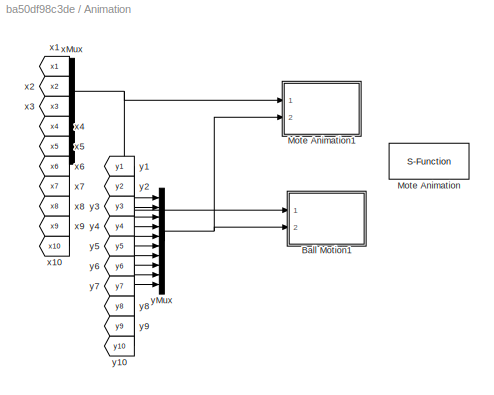
BLOCK [SubSystem] Animation
  FunctionWithSeparateData = off
  MaskEnableString = on
  MaskHideContents = off
  MaskIconFrame = on
  MaskIconOpaque = on
  MaskIconRotate = none
  MaskIconUnits = autoscale
  MaskInitialization = soccer_callback(gcb,N)
  MaskPortRotate = default
  MaskPromptString = Number of nodes
  MaskStyleString = edit
  MaskToolTipString = on
  MaskTunableValueString = on
  MaskValueString = 10
  MaskVariables = N=@1;
  MaskVisibilityString = on
  MinAlgLoopOccurrences = off
  Opaque = off
  Ports = []
  PropExecContextOutsideSubsystem = off
  RTWSystemCode = Auto
  RequestExecContextInheritance = off
BLOCK [SubSystem] Animation/Ball Motion1
  FunctionWithSeparateData = off
  MaskEnableString = on
  MaskHideContents = off
  MaskIconFrame = on
  MaskIconOpaque = on
  MaskIconRotate = none
  MaskIconUnits = autoscale
  MaskPortRotate = default
  MaskPromptString = Number of Motes
  MaskStyleString = edit
  MaskToolTipString = on
  MaskTunableValueString = on
  MaskValueString = 10
  MaskVariables = numMotes=@1;
  MaskVisibilityString = on
  MinAlgLoopOccurrences = off
  Opaque = off
  Ports = [2]
  PropExecContextOutsideSubsystem = off
  RTWSystemCode = Auto
  RequestExecContextInheritance = off
BLOCK [S-Function] Animation/Ball Motion1/Mote Animation
  DeleteFcn = if ~isempty(findobj('type','figure','name','dblpend1 Animation'));close('dblpend1 Animation'); end;
  EnableBusSupport = off
  FunctionName = ballmotion
  Parameters = [numMotes,xBall,yBall]
  Ports = [1]
BLOCK [Mux] Animation/Ball Motion1/Mux
  DisplayOption = bar
  Inputs = 2
  Ports = [2, 1]
BLOCK [Inport] Animation/Ball Motion1/x
  IconDisplay = Port number
BLOCK [Inport] Animation/Ball Motion1/y
  IconDisplay = Port number
  Port = 2
BLOCK [S-Function] Animation/Mote Animation
  DeleteFcn = if ~isempty(findobj('type','figure','name','dblpend1 Animation'));close('dblpend1 Animation'); end;
  EnableBusSupport = off
  FunctionName = mote_state
  Ports = []
BLOCK [SubSystem] Animation/Mote Animation1
  FunctionWithSeparateData = off
  MaskCallbackString = |||||
  MaskEnableString = on,on,on,on,on,on
  MaskHideContents = off
  MaskIconFrame = on
  MaskIconOpaque = on
  MaskIconRotate = none
  MaskIconUnits = autoscale
  MaskPortRotate = default
  MaskPromptString = Number of Motes|xMax|YMax|Update period|x0|y0
  MaskStyleString = edit,edit,edit,edit,edit,edit
  MaskToolTipString = on,on,on,on,on,on
  MaskTunableValueString = on,on,on,on,on,on
  MaskValueString = 10|20|30|0.1|xPos|yPos
  MaskVariables = numMotes=@1;xmax=@2;ymax=@3;ts=@4;x0=@5;y0=@6;
  MaskVisibilityString = on,on,on,on,on,on
  MinAlgLoopOccurrences = off
  Opaque = off
  Ports = [2]
  PropExecContextOutsideSubsystem = off
  RTWSystemCode = Auto
  RequestExecContextInheritance = off
BLOCK [S-Function] Animation/Mote Animation1/Mote Animation
  DeleteFcn = if ~isempty(findobj('type','figure','name','dblpend1 Animation'));close('dblpend1 Animation'); end;
  EnableBusSupport = off
  FunctionName = moteanimation
  Parameters = [numMotes ts xmax ymax] x0 y0
  Ports = [1]
BLOCK [Mux] Animation/Mote Animation1/Mux
  DisplayOption = bar
  Inputs = 2
  Ports = [2, 1]
BLOCK [Inport] Animation/Mote Animation1/x
  IconDisplay = Port number
BLOCK [Inport] Animation/Mote Animation1/y
  IconDisplay = Port number
  Port = 2
BLOCK [From] Animation/x1
  GotoTag = x1
  TagVisibility = global
BLOCK [From] Animation/x10
  GotoTag = x10
  TagVisibility = global
BLOCK [From] Animation/x2
  GotoTag = x2
  TagVisibility = global
BLOCK [From] Animation/x3
  GotoTag = x3
  TagVisibility = global
BLOCK [From] Animation/x4
  GotoTag = x4
  TagVisibility = global
BLOCK [From] Animation/x5
  GotoTag = x5
  TagVisibility = global
BLOCK [From] Animation/x6
  GotoTag = x6
  TagVisibility = global
BLOCK [From] Animation/x7
  GotoTag = x7
  TagVisibility = global
BLOCK [From] Animation/x8
  GotoTag = x8
  TagVisibility = global
BLOCK [From] Animation/x9
  GotoTag = x9
  TagVisibility = global
BLOCK [Mux] Animation/xMux
  DisplayOption = bar
  Inputs = 10
  Ports = [10, 1]
BLOCK [From] Animation/y1
  GotoTag = y1
  TagVisibility = global
BLOCK [From] Animation/y10
  GotoTag = y10
  TagVisibility = global
BLOCK [From] Animation/y2
  GotoTag = y2
  TagVisibility = global
BLOCK [From] Animation/y3
  GotoTag = y3
  TagVisibility = global
BLOCK [From] Animation/y4
  GotoTag = y4
  TagVisibility = global
BLOCK [From] Animation/y5
  GotoTag = y5
  TagVisibility = global
BLOCK [From] Animation/y6
  GotoTag = y6
  TagVisibility = global
BLOCK [From] Animation/y7
  GotoTag = y7
  TagVisibility = global
BLOCK [From] Animation/y8
  GotoTag = y8
  TagVisibility = global
BLOCK [From] Animation/y9
  GotoTag = y9
  TagVisibility = global
BLOCK [Mux] Animation/yMux
  DisplayOption = bar
  Inputs = 10
  Ports = [10, 1]
BLOCK [Clock] Clock
BLOCK [Display] Display
  Decimation = 1
  Lockdown = off
  Ports = [1]
BLOCK [SubSystem] Mote 1
  FunctionWithSeparateData = off
  MaskEnableString = on
  MaskHideContents = off
  MaskIconFrame = on
  MaskIconOpaque = on
  MaskIconRotate = none
  MaskIconUnits = autoscale
  MaskInitialization = mote_callback(gcb,nodeID)
  MaskPortRotate = default
  MaskPromptString = Node number
  MaskStyleString = edit
  MaskToolTipString = on
  MaskTunableValueString = off
  MaskType = fgdfgMOTE
  MaskValueString = 1
  MaskVariables = nodeID=@1;
  MaskVisibilityString = on
  MinAlgLoopOccurrences = off
  Opaque = off
  Ports = []
  PropExecContextOutsideSubsystem = off
  RTWSystemCode = Auto
  RequestExecContextInheritance = off
BLOCK [Integrator] Mote 1/ 
  InitialCondition = xPos(nodeID)
  Ports = [1, 1]
BLOCK [Demux] Mote 1/Demux
  Outputs = 2
  Ports = [1, 2]
BLOCK [Goto] Mote 1/Goto_x
  GotoTag = x1
  TagVisibility = global
BLOCK [Goto] Mote 1/Goto_y
  GotoTag = y1
  TagVisibility = global
BLOCK [Mux] Mote 1/Mux
  DisplayOption = bar
  Inputs = 2
  Ports = [2, 1]
BLOCK [Scope] Mote 1/Schedule
  Floating = off
  LimitDataPoints = off
  NumInputPorts = 1
  Ports = [1]
  ShowLegends = off
  TickLabels = on
  TimeRange = 3.5
  YMax = 3.7
  YMin = 1.8
  ZoomMode = xonly
BLOCK [Reference] Mote 1/TrueTime Kernel  REF=truetime/TrueTime Kernel  (lib defined in slx_0362a698a4ec)
  Ports = [1, 2]
  SourceBlock = truetime/TrueTime Kernel
  args = nodeID
  battery = off
  clockoffsetdrift = [0 0]
  label = 1: 1
  ninputsoutputs = [2 2]
  ntriggers = 0
  nwnodenbr = nodeID
  poweroutput = off
  schedoutput = on
  sfun = node_red_goalie_init
  trigtype = falling
BLOCK [SubSystem] Mote 10
  FunctionWithSeparateData = off
  MaskEnableString = on
  MaskHideContents = off
  MaskIconFrame = on
  MaskIconOpaque = on
  MaskIconRotate = none
  MaskIconUnits = autoscale
  MaskInitialization = mote_callback(gcb,nodeID)
  MaskPortRotate = default
  MaskPromptString = Node number
  MaskStyleString = edit
  MaskToolTipString = on
  MaskTunableValueString = off
  MaskType = fgdfgMOTE
  MaskValueString = 10
  MaskVariables = nodeID=@1;
  MaskVisibilityString = on
  MinAlgLoopOccurrences = off
  Opaque = off
  Ports = []
  PropExecContextOutsideSubsystem = off
  RTWSystemCode = Auto
  RequestExecContextInheritance = off
BLOCK [Integrator] Mote 10/ 
  InitialCondition = xPos(nodeID)
  Ports = [1, 1]
BLOCK [Demux] Mote 10/Demux
  Outputs = 2
  Ports = [1, 2]
BLOCK [Goto] Mote 10/Goto_x
  GotoTag = x10
  TagVisibility = global
BLOCK [Goto] Mote 10/Goto_y
  GotoTag = y10
  TagVisibility = global
BLOCK [Mux] Mote 10/Mux
  DisplayOption = bar
  Ports = [4, 1]
BLOCK [Scope] Mote 10/Schedule
  Floating = off
  LimitDataPoints = off
  NumInputPorts = 1
  Ports = [1]
  SaveName = ScopeData2
  ShowLegends = off
  TickLabels = on
  TimeRange = 3.5
  YMax = 3.7
  YMin = 1.8
  ZoomMode = xonly
BLOCK [TransferFcn] Mote 10/Transfer Fcn
  Denominator = [1 3.5]
BLOCK [TransferFcn] Mote 10/Transfer Fcn1
  Denominator = [1 3.5]
BLOCK [Reference] Mote 10/TrueTime Kernel  REF=truetime/TrueTime Kernel  (lib defined in slx_0362a698a4ec)
  Ports = [1, 2]
  SourceBlock = truetime/TrueTime Kernel
  args = nodeID
  battery = off
  clockoffsetdrift = [0 0]
  label = 1: 10
  ninputsoutputs = [4 2]
  ntriggers = 0
  nwnodenbr = nodeID
  poweroutput = off
  schedoutput = on
  sfun = node_blue_init
  trigtype = falling
BLOCK [SubSystem] Mote 2
  FunctionWithSeparateData = off
  MaskEnableString = on
  MaskHideContents = off
  MaskIconFrame = on
  MaskIconOpaque = on
  MaskIconRotate = none
  MaskIconUnits = autoscale
  MaskInitialization = mote_callback(gcb,nodeID)
  MaskPortRotate = default
  MaskPromptString = Node number
  MaskStyleString = edit
  MaskToolTipString = on
  MaskTunableValueString = off
  MaskType = fgdfgMOTE
  MaskValueString = 2
  MaskVariables = nodeID=@1;
  MaskVisibilityString = on
  MinAlgLoopOccurrences = off
  Opaque = off
  Ports = []
  PropExecContextOutsideSubsystem = off
  RTWSystemCode = Auto
  RequestExecContextInheritance = off
BLOCK [Integrator] Mote 2/ 
  InitialCondition = xPos(nodeID)
  Ports = [1, 1]
BLOCK [Demux] Mote 2/Demux
  Outputs = 2
  Ports = [1, 2]
BLOCK [Goto] Mote 2/Goto_x
  GotoTag = x2
  TagVisibility = global
BLOCK [Goto] Mote 2/Goto_y
  GotoTag = y2
  TagVisibility = global
BLOCK [Mux] Mote 2/Mux
  DisplayOption = bar
  Ports = [4, 1]
BLOCK [Scope] Mote 2/Schedule
  Floating = off
  LimitDataPoints = off
  NumInputPorts = 1
  Ports = [1]
  ShowLegends = off
  TickLabels = on
  TimeRange = 3.5
  YMax = 3.7
  YMin = 1.8
  ZoomMode = xonly
BLOCK [TransferFcn] Mote 2/Transfer Fcn
  Denominator = [1 3.5]
BLOCK [TransferFcn] Mote 2/Transfer Fcn1
  Denominator = [1 3.5]
BLOCK [Reference] Mote 2/TrueTime Kernel  REF=truetime/TrueTime Kernel  (lib defined in slx_0362a698a4ec)
  Ports = [1, 2]
  SourceBlock = truetime/TrueTime Kernel
  args = nodeID
  battery = off
  clockoffsetdrift = [0 0]
  label = 1: 2
  ninputsoutputs = [4 2]
  ntriggers = 0
  nwnodenbr = nodeID
  poweroutput = off
  schedoutput = on
  sfun = node_red_init
  trigtype = falling
BLOCK [SubSystem] Mote 3
  FunctionWithSeparateData = off
  MaskEnableString = on
  MaskHideContents = off
  MaskIconFrame = on
  MaskIconOpaque = on
  MaskIconRotate = none
  MaskIconUnits = autoscale
  MaskInitialization = mote_callback(gcb,nodeID)
  MaskPortRotate = default
  MaskPromptString = Node number
  MaskStyleString = edit
  MaskToolTipString = on
  MaskTunableValueString = off
  MaskType = fgdfgMOTE
  MaskValueString = 3
  MaskVariables = nodeID=@1;
  MaskVisibilityString = on
  MinAlgLoopOccurrences = off
  Opaque = off
  Ports = []
  PropExecContextOutsideSubsystem = off
  RTWSystemCode = Auto
  RequestExecContextInheritance = off
BLOCK [Integrator] Mote 3/ 
  InitialCondition = xPos(nodeID)
  Ports = [1, 1]
BLOCK [Demux] Mote 3/Demux
  Outputs = 2
  Ports = [1, 2]
BLOCK [Goto] Mote 3/Goto_x
  GotoTag = x3
  TagVisibility = global
BLOCK [Goto] Mote 3/Goto_y
  GotoTag = y3
  TagVisibility = global
BLOCK [Mux] Mote 3/Mux
  DisplayOption = bar
  Ports = [4, 1]
BLOCK [Scope] Mote 3/Schedule
  Floating = off
  LimitDataPoints = off
  NumInputPorts = 1
  Ports = [1]
  ShowLegends = off
  TickLabels = on
  TimeRange = 3.5
  YMax = 3.7
  YMin = 1.8
  ZoomMode = xonly
BLOCK [TransferFcn] Mote 3/Transfer Fcn
  Denominator = [1 4]
BLOCK [TransferFcn] Mote 3/Transfer Fcn1
  Denominator = [1 4]
BLOCK [Reference] Mote 3/TrueTime Kernel  REF=truetime/TrueTime Kernel  (lib defined in slx_0362a698a4ec)
  Ports = [1, 2]
  SourceBlock = truetime/TrueTime Kernel
  args = nodeID
  battery = off
  clockoffsetdrift = [0 0]
  label = 1: 3
  ninputsoutputs = [4 2]
  ntriggers = 0
  nwnodenbr = nodeID
  poweroutput = off
  schedoutput = on
  sfun = node_red_init
  trigtype = falling
BLOCK [SubSystem] Mote 4
  FunctionWithSeparateData = off
  MaskEnableString = on
  MaskHideContents = off
  MaskIconFrame = on
  MaskIconOpaque = on
  MaskIconRotate = none
  MaskIconUnits = autoscale
  MaskInitialization = mote_callback(gcb,nodeID)
  MaskPortRotate = default
  MaskPromptString = Node number
  MaskStyleString = edit
  MaskToolTipString = on
  MaskTunableValueString = off
  MaskType = fgdfgMOTE
  MaskValueString = 4
  MaskVariables = nodeID=@1;
  MaskVisibilityString = on
  MinAlgLoopOccurrences = off
  Opaque = off
  Ports = []
  PropExecContextOutsideSubsystem = off
  RTWSystemCode = Auto
  RequestExecContextInheritance = off
BLOCK [Integrator] Mote 4/ 
  InitialCondition = xPos(nodeID)
  Ports = [1, 1]
BLOCK [Demux] Mote 4/Demux
  Outputs = 2
  Ports = [1, 2]
BLOCK [Goto] Mote 4/Goto_x
  GotoTag = x4
  TagVisibility = global
BLOCK [Goto] Mote 4/Goto_y
  GotoTag = y4
  TagVisibility = global
BLOCK [Mux] Mote 4/Mux
  DisplayOption = bar
  Ports = [4, 1]
BLOCK [Scope] Mote 4/Schedule
  Floating = off
  LimitDataPoints = off
  NumInputPorts = 1
  Ports = [1]
  ShowLegends = off
  TickLabels = on
  TimeRange = 3.5
  YMax = 3.7
  YMin = 1.8
  ZoomMode = xonly
BLOCK [TransferFcn] Mote 4/Transfer Fcn
  Denominator = [1 2.5]
BLOCK [TransferFcn] Mote 4/Transfer Fcn1
  Denominator = [1 2.5]
BLOCK [Reference] Mote 4/TrueTime Kernel  REF=truetime/TrueTime Kernel  (lib defined in slx_0362a698a4ec)
  Ports = [1, 2]
  SourceBlock = truetime/TrueTime Kernel
  args = nodeID
  battery = off
  clockoffsetdrift = [0 0]
  label = 1: 4
  ninputsoutputs = [4 2]
  ntriggers = 0
  nwnodenbr = nodeID
  poweroutput = off
  schedoutput = on
  sfun = node_red_init
  trigtype = falling
BLOCK [SubSystem] Mote 5
  FunctionWithSeparateData = off
  MaskEnableString = on
  MaskHideContents = off
  MaskIconFrame = on
  MaskIconOpaque = on
  MaskIconRotate = none
  MaskIconUnits = autoscale
  MaskInitialization = mote_callback(gcb,nodeID)
  MaskPortRotate = default
  MaskPromptString = Node number
  MaskStyleString = edit
  MaskToolTipString = on
  MaskTunableValueString = off
  MaskType = fgdfgMOTE
  MaskValueString = 5
  MaskVariables = nodeID=@1;
  MaskVisibilityString = on
  MinAlgLoopOccurrences = off
  Opaque = off
  Ports = []
  PropExecContextOutsideSubsystem = off
  RTWSystemCode = Auto
  RequestExecContextInheritance = off
BLOCK [Integrator] Mote 5/ 
  InitialCondition = xPos(nodeID)
  Ports = [1, 1]
BLOCK [Demux] Mote 5/Demux
  Outputs = 2
  Ports = [1, 2]
BLOCK [Goto] Mote 5/Goto_x
  GotoTag = x5
  TagVisibility = global
BLOCK [Goto] Mote 5/Goto_y
  GotoTag = y5
  TagVisibility = global
BLOCK [Mux] Mote 5/Mux
  DisplayOption = bar
  Ports = [4, 1]
BLOCK [Scope] Mote 5/Schedule
  Floating = off
  LimitDataPoints = off
  NumInputPorts = 1
  Ports = [1]
  ShowLegends = off
  TickLabels = on
  TimeRange = 3.5
  YMax = 3.7
  YMin = 1.8
  ZoomMode = xonly
BLOCK [TransferFcn] Mote 5/Transfer Fcn
  Denominator = [1 2.5]
BLOCK [TransferFcn] Mote 5/Transfer Fcn1
  Denominator = [1 2.5]
BLOCK [Reference] Mote 5/TrueTime Kernel  REF=truetime/TrueTime Kernel  (lib defined in slx_0362a698a4ec)
  Ports = [1, 2]
  SourceBlock = truetime/TrueTime Kernel
  args = nodeID
  battery = off
  clockoffsetdrift = [0 0]
  label = 1: 5
  ninputsoutputs = [4 2]
  ntriggers = 0
  nwnodenbr = nodeID
  poweroutput = off
  schedoutput = on
  sfun = node_red_init
  trigtype = falling
BLOCK [SubSystem] Mote 6
  FunctionWithSeparateData = off
  MaskEnableString = on
  MaskHideContents = off
  MaskIconFrame = on
  MaskIconOpaque = on
  MaskIconRotate = none
  MaskIconUnits = autoscale
  MaskInitialization = mote_callback(gcb,nodeID)
  MaskPortRotate = default
  MaskPromptString = Node number
  MaskStyleString = edit
  MaskToolTipString = on
  MaskTunableValueString = off
  MaskType = fgdfgMOTE
  MaskValueString = 6
  MaskVariables = nodeID=@1;
  MaskVisibilityString = on
  MinAlgLoopOccurrences = off
  Opaque = off
  Ports = []
  PropExecContextOutsideSubsystem = off
  RTWSystemCode = Auto
  RequestExecContextInheritance = off
BLOCK [Integrator] Mote 6/ 
  InitialCondition = xPos(nodeID)
  Ports = [1, 1]
BLOCK [Demux] Mote 6/Demux
  Outputs = 2
  Ports = [1, 2]
BLOCK [Goto] Mote 6/Goto_x
  GotoTag = x6
  TagVisibility = global
BLOCK [Goto] Mote 6/Goto_y
  GotoTag = y6
  TagVisibility = global
BLOCK [Mux] Mote 6/Mux
  DisplayOption = bar
  Inputs = 2
  Ports = [2, 1]
BLOCK [Scope] Mote 6/Schedule
  Floating = off
  LimitDataPoints = off
  NumInputPorts = 1
  Ports = [1]
  SaveName = ScopeData1
  ShowLegends = off
  TickLabels = on
  TimeRange = 3.5
  YMax = 3.7
  YMin = 1.8
  ZoomMode = xonly
BLOCK [Reference] Mote 6/TrueTime Kernel  REF=truetime/TrueTime Kernel  (lib defined in slx_0362a698a4ec)
  Ports = [1, 2]
  SourceBlock = truetime/TrueTime Kernel
  args = nodeID
  battery = off
  clockoffsetdrift = [0 0]
  label = 1: 6
  ninputsoutputs = [2 2]
  ntriggers = 0
  nwnodenbr = nodeID
  poweroutput = off
  schedoutput = on
  sfun = node_blue_goalie_init
  trigtype = falling
BLOCK [SubSystem] Mote 7
  FunctionWithSeparateData = off
  MaskEnableString = on
  MaskHideContents = off
  MaskIconFrame = on
  MaskIconOpaque = on
  MaskIconRotate = none
  MaskIconUnits = autoscale
  MaskInitialization = mote_callback(gcb,nodeID)
  MaskPortRotate = default
  MaskPromptString = Node number
  MaskStyleString = edit
  MaskToolTipString = on
  MaskTunableValueString = off
  MaskType = fgdfgMOTE
  MaskValueString = 7
  MaskVariables = nodeID=@1;
  MaskVisibilityString = on
  MinAlgLoopOccurrences = off
  Opaque = off
  Ports = []
  PropExecContextOutsideSubsystem = off
  RTWSystemCode = Auto
  RequestExecContextInheritance = off
BLOCK [Integrator] Mote 7/ 
  InitialCondition = xPos(nodeID)
  Ports = [1, 1]
BLOCK [Demux] Mote 7/Demux
  Outputs = 2
  Ports = [1, 2]
BLOCK [Goto] Mote 7/Goto_x
  GotoTag = x7
  TagVisibility = global
BLOCK [Goto] Mote 7/Goto_y
  GotoTag = y7
  TagVisibility = global
BLOCK [Mux] Mote 7/Mux
  DisplayOption = bar
  Ports = [4, 1]
BLOCK [Scope] Mote 7/Schedule
  Floating = off
  LimitDataPoints = off
  NumInputPorts = 1
  Ports = [1]
  SaveName = ScopeData2
  ShowLegends = off
  TickLabels = on
  TimeRange = 3.5
  YMax = 3.7
  YMin = 1.8
  ZoomMode = xonly
BLOCK [TransferFcn] Mote 7/Transfer Fcn
  Denominator = [1 2.5]
BLOCK [TransferFcn] Mote 7/Transfer Fcn1
  Denominator = [1 2.5]
BLOCK [Reference] Mote 7/TrueTime Kernel  REF=truetime/TrueTime Kernel  (lib defined in slx_0362a698a4ec)
  Ports = [1, 2]
  SourceBlock = truetime/TrueTime Kernel
  args = nodeID
  battery = off
  clockoffsetdrift = [0 0]
  label = 1: 7
  ninputsoutputs = [4 2]
  ntriggers = 0
  nwnodenbr = nodeID
  poweroutput = off
  schedoutput = on
  sfun = node_blue_init
  trigtype = falling
BLOCK [SubSystem] Mote 8
  FunctionWithSeparateData = off
  MaskEnableString = on
  MaskHideContents = off
  MaskIconFrame = on
  MaskIconOpaque = on
  MaskIconRotate = none
  MaskIconUnits = autoscale
  MaskInitialization = mote_callback(gcb,nodeID)
  MaskPortRotate = default
  MaskPromptString = Node number
  MaskStyleString = edit
  MaskToolTipString = on
  MaskTunableValueString = off
  MaskType = fgdfgMOTE
  MaskValueString = 8
  MaskVariables = nodeID=@1;
  MaskVisibilityString = on
  MinAlgLoopOccurrences = off
  Opaque = off
  Ports = []
  PropExecContextOutsideSubsystem = off
  RTWSystemCode = Auto
  RequestExecContextInheritance = off
BLOCK [Integrator] Mote 8/ 
  InitialCondition = xPos(nodeID)
  Ports = [1, 1]
BLOCK [Demux] Mote 8/Demux
  Outputs = 2
  Ports = [1, 2]
BLOCK [Goto] Mote 8/Goto_x
  GotoTag = x8
  TagVisibility = global
BLOCK [Goto] Mote 8/Goto_y
  GotoTag = y8
  TagVisibility = global
BLOCK [Mux] Mote 8/Mux
  DisplayOption = bar
  Ports = [4, 1]
BLOCK [Scope] Mote 8/Schedule
  Floating = off
  LimitDataPoints = off
  NumInputPorts = 1
  Ports = [1]
  SaveName = ScopeData2
  ShowLegends = off
  TickLabels = on
  TimeRange = 3.5
  YMax = 3.7
  YMin = 1.8
  ZoomMode = xonly
BLOCK [TransferFcn] Mote 8/Transfer Fcn
  Denominator = [1 3.5]
BLOCK [TransferFcn] Mote 8/Transfer Fcn1
  Denominator = [1 3.5]
BLOCK [Reference] Mote 8/TrueTime Kernel  REF=truetime/TrueTime Kernel  (lib defined in slx_0362a698a4ec)
  Ports = [1, 2]
  SourceBlock = truetime/TrueTime Kernel
  args = nodeID
  battery = off
  clockoffsetdrift = [0 0]
  label = 1: 8
  ninputsoutputs = [4 2]
  ntriggers = 0
  nwnodenbr = nodeID
  poweroutput = off
  schedoutput = on
  sfun = node_blue_init
  trigtype = falling
BLOCK [SubSystem] Mote 9
  FunctionWithSeparateData = off
  MaskEnableString = on
  MaskHideContents = off
  MaskIconFrame = on
  MaskIconOpaque = on
  MaskIconRotate = none
  MaskIconUnits = autoscale
  MaskInitialization = mote_callback(gcb,nodeID)
  MaskPortRotate = default
  MaskPromptString = Node number
  MaskStyleString = edit
  MaskToolTipString = on
  MaskTunableValueString = off
  MaskType = fgdfgMOTE
  MaskValueString = 9
  MaskVariables = nodeID=@1;
  MaskVisibilityString = on
  MinAlgLoopOccurrences = off
  Opaque = off
  Ports = []
  PropExecContextOutsideSubsystem = off
  RTWSystemCode = Auto
  RequestExecContextInheritance = off
BLOCK [Integrator] Mote 9/ 
  InitialCondition = xPos(nodeID)
  Ports = [1, 1]
BLOCK [Demux] Mote 9/Demux
  Outputs = 2
  Ports = [1, 2]
BLOCK [Goto] Mote 9/Goto_x
  GotoTag = x9
  TagVisibility = global
BLOCK [Goto] Mote 9/Goto_y
  GotoTag = y9
  TagVisibility = global
BLOCK [Mux] Mote 9/Mux
  DisplayOption = bar
  Ports = [4, 1]
BLOCK [Scope] Mote 9/Schedule
  Floating = off
  LimitDataPoints = off
  NumInputPorts = 1
  Ports = [1]
  SaveName = ScopeData2
  ShowLegends = off
  TickLabels = on
  TimeRange = 3.5
  YMax = 3.7
  YMin = 1.8
  ZoomMode = xonly
BLOCK [TransferFcn] Mote 9/Transfer Fcn
  Denominator = [1 2.5]
BLOCK [TransferFcn] Mote 9/Transfer Fcn1
  Denominator = [1 2.5]
BLOCK [Reference] Mote 9/TrueTime Kernel  REF=truetime/TrueTime Kernel  (lib defined in slx_0362a698a4ec)
  Ports = [1, 2]
  SourceBlock = truetime/TrueTime Kernel
  args = nodeID
  battery = off
  clockoffsetdrift = [0 0]
  label = 1: 9
  ninputsoutputs = [4 2]
  ntriggers = 0
  nwnodenbr = nodeID
  poweroutput = off
  schedoutput = on
  sfun = node_blue_init
  trigtype = falling
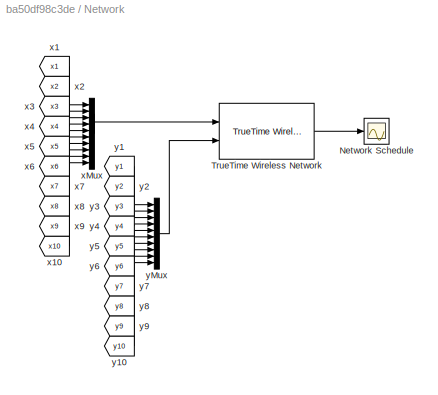
BLOCK [SubSystem] Network
  FunctionWithSeparateData = off
  MaskEnableString = on
  MaskHideContents = off
  MaskIconFrame = on
  MaskIconOpaque = on
  MaskIconRotate = none
  MaskIconUnits = autoscale
  MaskInitialization = soccer_callback(gcb,N)
  MaskPortRotate = default
  MaskPromptString = Number of nodes
  MaskSelfModifiable = on
  MaskStyleString = edit
  MaskToolTipString = on
  MaskTunableValueString = on
  MaskValueString = 10
  MaskVariables = N=@1;
  MaskVisibilityString = on
  MinAlgLoopOccurrences = off
  Opaque = off
  Ports = []
  PropExecContextOutsideSubsystem = off
  RTWSystemCode = Auto
  RequestExecContextInheritance = off
BLOCK [Scope] Network/Network Schedule
  DataFormat = StructureWithTime
  Floating = off
  LimitDataPoints = off
  NumInputPorts = 1
  Ports = [1]
  SaveName = nschedule
  ShowLegends = off
  TimeRange = 40
  YMax = 10.5
  YMin = 1
  ZoomMode = xonly
BLOCK [Reference] Network/TrueTime Wireless Network  REF=truetime/TrueTime Wireless   (lib defined in slx_0362a698a4ec)
Network
  Ports = [2, 1]
  SourceBlock = truetime/TrueTime Wireless \nNetwork
  SourceType = Wireless Network
  acktimeout = 0.00004
  error_threshold = 0.03
  lossprob = 0
  minsize = 272
  nnodes = N
  nwnbr = 1
  nwtype = 802.11b (WLAN)
  pathloss = 3.5
  poweroutput = off
  rate = 800000
  retrylimit = 5
  scheduleoutput = on
  seed = floor(sum(100*clock))
  threshold = -48
  transpower = 20
  use_pathloss_function = default
BLOCK [From] Network/x1
  GotoTag = x1
  TagVisibility = global
BLOCK [From] Network/x10
  GotoTag = x10
  TagVisibility = global
BLOCK [From] Network/x2
  GotoTag = x2
  TagVisibility = global
BLOCK [From] Network/x3
  GotoTag = x3
  TagVisibility = global
BLOCK [From] Network/x4
  GotoTag = x4
  TagVisibility = global
BLOCK [From] Network/x5
  GotoTag = x5
  TagVisibility = global
BLOCK [From] Network/x6
  GotoTag = x6
  TagVisibility = global
BLOCK [From] Network/x7
  GotoTag = x7
  TagVisibility = global
BLOCK [From] Network/x8
  GotoTag = x8
  TagVisibility = global
BLOCK [From] Network/x9
  GotoTag = x9
  TagVisibility = global
BLOCK [Mux] Network/xMux
  DisplayOption = bar
  Inputs = 10
  Ports = [10, 1]
BLOCK [From] Network/y1
  GotoTag = y1
  TagVisibility = global
BLOCK [From] Network/y10
  GotoTag = y10
  TagVisibility = global
BLOCK [From] Network/y2
  GotoTag = y2
  TagVisibility = global
BLOCK [From] Network/y3
  GotoTag = y3
  TagVisibility = global
BLOCK [From] Network/y4
  GotoTag = y4
  TagVisibility = global
BLOCK [From] Network/y5
  GotoTag = y5
  TagVisibility = global
BLOCK [From] Network/y6
  GotoTag = y6
  TagVisibility = global
BLOCK [From] Network/y7
  GotoTag = y7
  TagVisibility = global
BLOCK [From] Network/y8
  GotoTag = y8
  TagVisibility = global
BLOCK [From] Network/y9
  GotoTag = y9
  TagVisibility = global
BLOCK [Mux] Network/yMux
  DisplayOption = bar
  Inputs = 10
  Ports = [10, 1]
ANNOTATION (root): TrueTime 2.0 Mote Soccer <copyright redacted>
LINE Animation/Ball Motion1/Mux:1 -> Animation/Ball Motion1/Mote Animation:1
LINE Animation/Ball Motion1/x:1 -> Animation/Ball Motion1/Mux:1
LINE Animation/Ball Motion1/y:1 -> Animation/Ball Motion1/Mux:2
LINE Animation/Mote Animation1/Mux:1 -> Animation/Mote Animation1/Mote Animation:1
LINE Animation/Mote Animation1/x:1 -> Animation/Mote Animation1/Mux:1
LINE Animation/Mote Animation1/y:1 -> Animation/Mote Animation1/Mux:2
LINE Animation/x10:1 -> Animation/xMux:10
LINE Animation/x1:1 -> Animation/xMux:1
LINE Animation/x2:1 -> Animation/xMux:2
LINE Animation/x3:1 -> Animation/xMux:3
LINE Animation/x4:1 -> Animation/xMux:4
LINE Animation/x5:1 -> Animation/xMux:5
LINE Animation/x6:1 -> Animation/xMux:6
LINE Animation/x7:1 -> Animation/xMux:7
LINE Animation/x8:1 -> Animation/xMux:8
LINE Animation/x9:1 -> Animation/xMux:9
NET Animation/xMux:1 -> Animation/Ball Motion1:1, Animation/Mote Animation1:1
LINE Animation/y10:1 -> Animation/yMux:10
LINE Animation/y1:1 -> Animation/yMux:1
LINE Animation/y2:1 -> Animation/yMux:2
LINE Animation/y3:1 -> Animation/yMux:3
LINE Animation/y4:1 -> Animation/yMux:4
LINE Animation/y5:1 -> Animation/yMux:5
LINE Animation/y6:1 -> Animation/yMux:6
LINE Animation/y7:1 -> Animation/yMux:7
LINE Animation/y8:1 -> Animation/yMux:8
LINE Animation/y9:1 -> Animation/yMux:9
NET Animation/yMux:1 -> Animation/Ball Motion1:2, Animation/Mote Animation1:2
LINE Clock:1 -> Display:1
NET Mote 1/ :1 -> Mote 1/Goto_x:1, Mote 1/Goto_y:1, Mote 1/Mux:1, Mote 1/Mux:2
LINE Mote 1/Demux:1 -> Mote 1/ :1
LINE Mote 1/Demux:2 -> Mote 1/ :1
LINE Mote 1/Mux:1 -> Mote 1/TrueTime Kernel:1
LINE Mote 1/TrueTime Kernel:1 -> Mote 1/Demux:1
LINE Mote 1/TrueTime Kernel:2 -> Mote 1/Schedule:1
NET Mote 10/ :1 -> Mote 10/Goto_x:1, Mote 10/Goto_y:1, Mote 10/Mux:1, Mote 10/Mux:2
LINE Mote 10/Demux:1 -> Mote 10/Transfer Fcn1:1
LINE Mote 10/Demux:2 -> Mote 10/Transfer Fcn:1
LINE Mote 10/Mux:1 -> Mote 10/TrueTime Kernel:1
NET Mote 10/Transfer Fcn1:1 -> Mote 10/ :1, Mote 10/Mux:3
NET Mote 10/Transfer Fcn:1 -> Mote 10/ :1, Mote 10/Mux:4
LINE Mote 10/TrueTime Kernel:1 -> Mote 10/Demux:1
LINE Mote 10/TrueTime Kernel:2 -> Mote 10/Schedule:1
NET Mote 2/ :1 -> Mote 2/Goto_x:1, Mote 2/Goto_y:1, Mote 2/Mux:1, Mote 2/Mux:2
LINE Mote 2/Demux:1 -> Mote 2/Transfer Fcn1:1
LINE Mote 2/Demux:2 -> Mote 2/Transfer Fcn:1
LINE Mote 2/Mux:1 -> Mote 2/TrueTime Kernel:1
NET Mote 2/Transfer Fcn1:1 -> Mote 2/ :1, Mote 2/Mux:3
NET Mote 2/Transfer Fcn:1 -> Mote 2/ :1, Mote 2/Mux:4
LINE Mote 2/TrueTime Kernel:1 -> Mote 2/Demux:1
LINE Mote 2/TrueTime Kernel:2 -> Mote 2/Schedule:1
NET Mote 3/ :1 -> Mote 3/Goto_x:1, Mote 3/Goto_y:1, Mote 3/Mux:1, Mote 3/Mux:2
LINE Mote 3/Demux:1 -> Mote 3/Transfer Fcn1:1
LINE Mote 3/Demux:2 -> Mote 3/Transfer Fcn:1
LINE Mote 3/Mux:1 -> Mote 3/TrueTime Kernel:1
NET Mote 3/Transfer Fcn1:1 -> Mote 3/ :1, Mote 3/Mux:3
NET Mote 3/Transfer Fcn:1 -> Mote 3/ :1, Mote 3/Mux:4
LINE Mote 3/TrueTime Kernel:1 -> Mote 3/Demux:1
LINE Mote 3/TrueTime Kernel:2 -> Mote 3/Schedule:1
NET Mote 4/ :1 -> Mote 4/Goto_x:1, Mote 4/Goto_y:1, Mote 4/Mux:1, Mote 4/Mux:2
LINE Mote 4/Demux:1 -> Mote 4/Transfer Fcn1:1
LINE Mote 4/Demux:2 -> Mote 4/Transfer Fcn:1
LINE Mote 4/Mux:1 -> Mote 4/TrueTime Kernel:1
NET Mote 4/Transfer Fcn1:1 -> Mote 4/ :1, Mote 4/Mux:3
NET Mote 4/Transfer Fcn:1 -> Mote 4/ :1, Mote 4/Mux:4
LINE Mote 4/TrueTime Kernel:1 -> Mote 4/Demux:1
LINE Mote 4/TrueTime Kernel:2 -> Mote 4/Schedule:1
NET Mote 5/ :1 -> Mote 5/Goto_x:1, Mote 5/Goto_y:1, Mote 5/Mux:1, Mote 5/Mux:2
LINE Mote 5/Demux:1 -> Mote 5/Transfer Fcn1:1
LINE Mote 5/Demux:2 -> Mote 5/Transfer Fcn:1
LINE Mote 5/Mux:1 -> Mote 5/TrueTime Kernel:1
NET Mote 5/Transfer Fcn1:1 -> Mote 5/ :1, Mote 5/Mux:3
NET Mote 5/Transfer Fcn:1 -> Mote 5/ :1, Mote 5/Mux:4
LINE Mote 5/TrueTime Kernel:1 -> Mote 5/Demux:1
LINE Mote 5/TrueTime Kernel:2 -> Mote 5/Schedule:1
NET Mote 6/ :1 -> Mote 6/Goto_x:1, Mote 6/Goto_y:1, Mote 6/Mux:1, Mote 6/Mux:2
LINE Mote 6/Demux:1 -> Mote 6/ :1
LINE Mote 6/Demux:2 -> Mote 6/ :1
LINE Mote 6/Mux:1 -> Mote 6/TrueTime Kernel:1
LINE Mote 6/TrueTime Kernel:1 -> Mote 6/Demux:1
LINE Mote 6/TrueTime Kernel:2 -> Mote 6/Schedule:1
NET Mote 7/ :1 -> Mote 7/Goto_x:1, Mote 7/Goto_y:1, Mote 7/Mux:1, Mote 7/Mux:2
LINE Mote 7/Demux:1 -> Mote 7/Transfer Fcn1:1
LINE Mote 7/Demux:2 -> Mote 7/Transfer Fcn:1
LINE Mote 7/Mux:1 -> Mote 7/TrueTime Kernel:1
NET Mote 7/Transfer Fcn1:1 -> Mote 7/ :1, Mote 7/Mux:3
NET Mote 7/Transfer Fcn:1 -> Mote 7/ :1, Mote 7/Mux:4
LINE Mote 7/TrueTime Kernel:1 -> Mote 7/Demux:1
LINE Mote 7/TrueTime Kernel:2 -> Mote 7/Schedule:1
NET Mote 8/ :1 -> Mote 8/Goto_x:1, Mote 8/Goto_y:1, Mote 8/Mux:1, Mote 8/Mux:2
LINE Mote 8/Demux:1 -> Mote 8/Transfer Fcn1:1
LINE Mote 8/Demux:2 -> Mote 8/Transfer Fcn:1
LINE Mote 8/Mux:1 -> Mote 8/TrueTime Kernel:1
NET Mote 8/Transfer Fcn1:1 -> Mote 8/ :1, Mote 8/Mux:3
NET Mote 8/Transfer Fcn:1 -> Mote 8/ :1, Mote 8/Mux:4
LINE Mote 8/TrueTime Kernel:1 -> Mote 8/Demux:1
LINE Mote 8/TrueTime Kernel:2 -> Mote 8/Schedule:1
NET Mote 9/ :1 -> Mote 9/Goto_x:1, Mote 9/Goto_y:1, Mote 9/Mux:1, Mote 9/Mux:2
LINE Mote 9/Demux:1 -> Mote 9/Transfer Fcn1:1
LINE Mote 9/Demux:2 -> Mote 9/Transfer Fcn:1
LINE Mote 9/Mux:1 -> Mote 9/TrueTime Kernel:1
NET Mote 9/Transfer Fcn1:1 -> Mote 9/ :1, Mote 9/Mux:3
NET Mote 9/Transfer Fcn:1 -> Mote 9/ :1, Mote 9/Mux:4
LINE Mote 9/TrueTime Kernel:1 -> Mote 9/Demux:1
LINE Mote 9/TrueTime Kernel:2 -> Mote 9/Schedule:1
note: NET lines group one-source signal fan-out (src -> all destinations, sorted); 1:1 wires keep LINE
